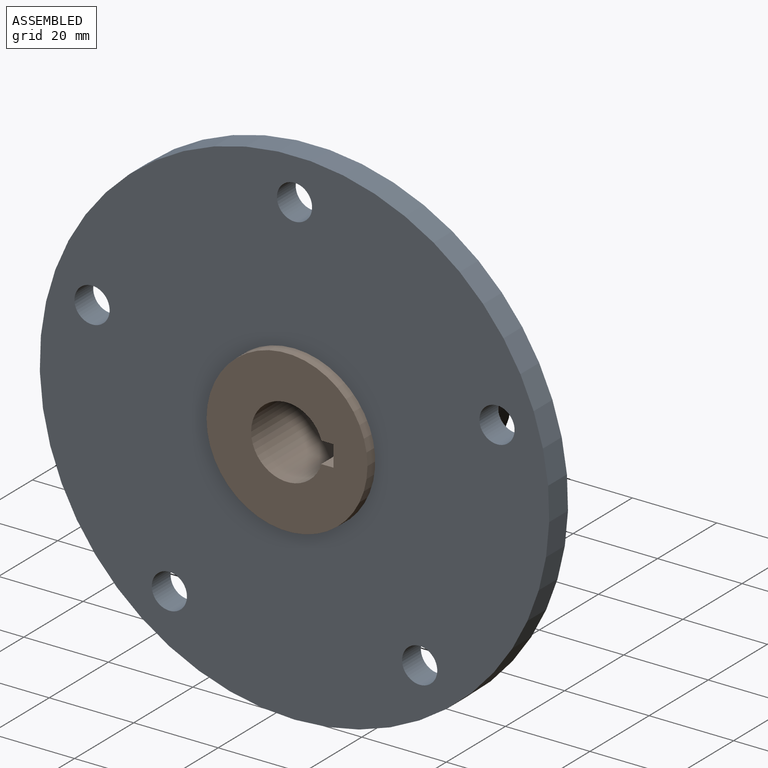
[diagram: assembled view]
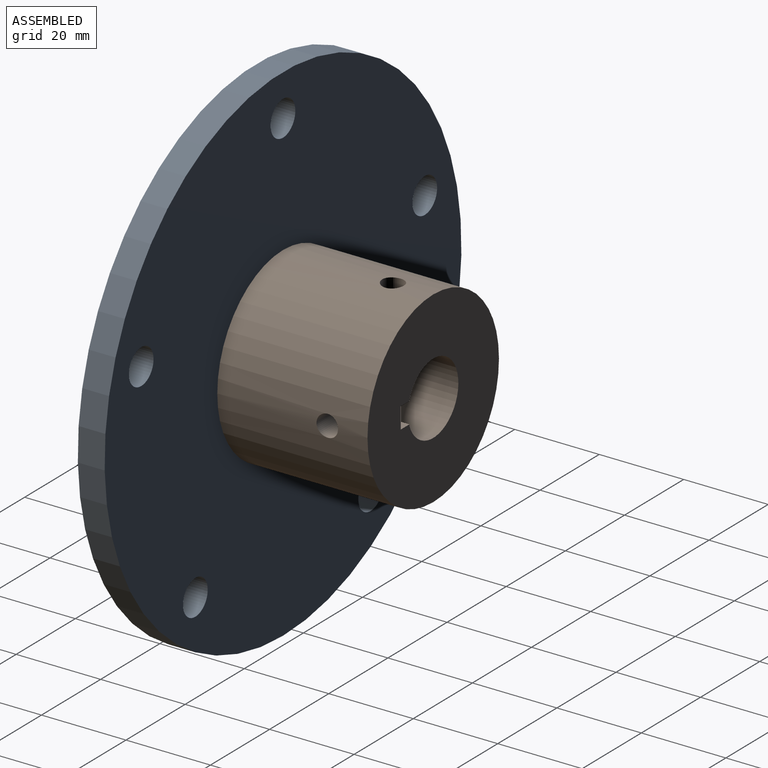
[diagram: assembled view, second angle]
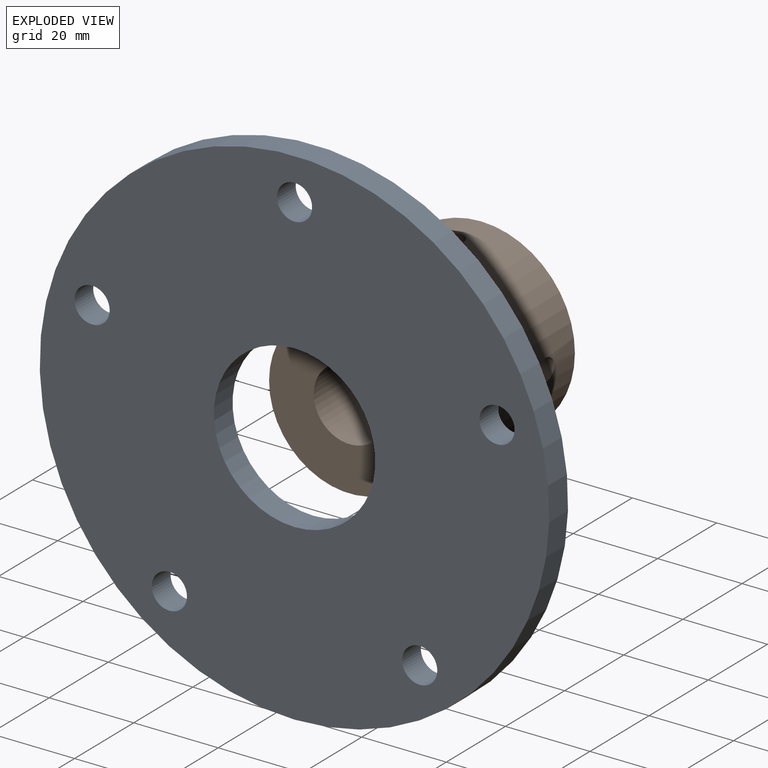
[diagram: exploded view]
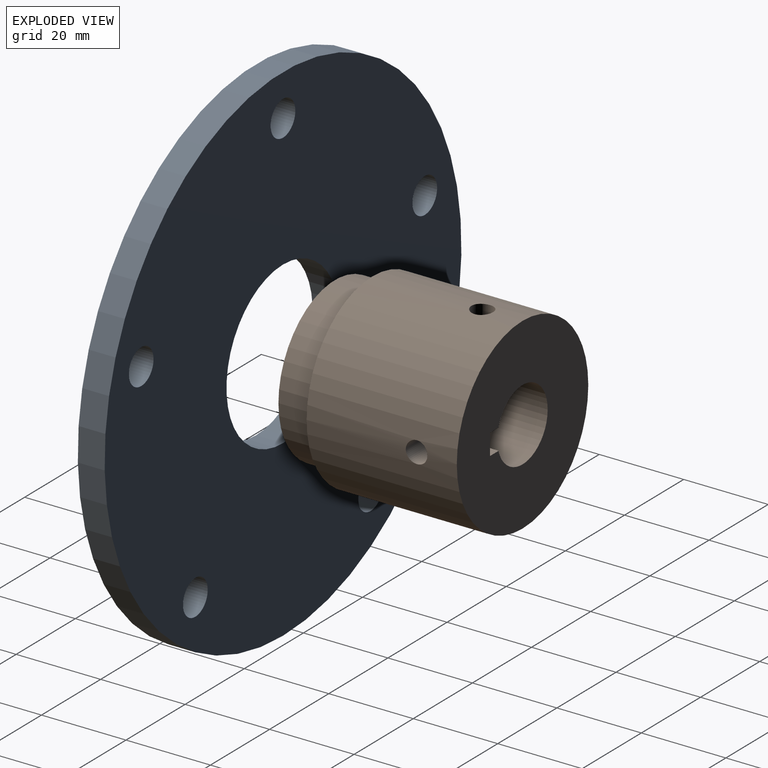
[diagram: exploded view, second angle]
ASSEMBLY  parts=2 mates=2
PART A: 9 faces, bbox 120.7x6.4x120.7 mm
  f0: cylinder r=19.11mm len=38.23mm, axis (0,1,0), area 762.6mm2, adj f2,f3
  f1: cylinder r=60.32mm len=120.65mm, axis (0,1,0), area 2406.9mm2, adj f2,f3
  f2: plane 120.65x120.65mm, normal (0,-1,0), area 10012.3mm2, adj f0,f1,f4,f5,f6,f7,f8
  f3: plane 120.65x120.65mm, normal (0,1,0), area 10012.3mm2, adj f0,f1,f4,f5,f6,f7,f8
  f4: cylinder r=4.17mm len=8.33mm, axis (0,-1,0), area 166.2mm2, adj f2,f3
  f5: cylinder r=4.17mm len=8.33mm, axis (0,-1,0), area 166.2mm2, adj f2,f3
  f6: cylinder r=4.17mm len=8.33mm, axis (0,-1,0), area 166.2mm2, adj f2,f3
  f7: cylinder r=4.17mm len=8.33mm, axis (0,-1,0), area 166.2mm2, adj f2,f3
  f8: cylinder r=4.17mm len=8.33mm, axis (0,-1,0), area 166.2mm2, adj f2,f3
PART B: 14 faces, bbox 44.5x44.5x44.5 mm
  f0: cylinder r=22.23mm len=44.45mm, axis (-1,0,0), area 4924.8mm2, adj f8,f10,f11,f13
  f1: plane 38.1x38.1mm, normal (1,0,0), area 900mm2, adj f2,f3,f5,f7,f12
  f2: cylinder r=8.5mm len=44.45mm, axis (-1,0,0), area 2127.6mm2, adj f1,f4,f5,f6,f7,f8,f10,f11
  f3: plane 34.41x5mm, normal (0,0,-1), area 164.4mm2, adj f1,f5,f7,f11
  f4: plane 9.01x2.88mm, normal (0,1,0), area 25.9mm2, adj f2,f8,f9,f11
  f5: plane 34.41x2.88mm, normal (0,1,0), area 99mm2, adj f1,f2,f3,f11
  f6: plane 9.01x2.88mm, normal (0,-1,0), area 25.9mm2, adj f2,f8,f9,f11
  f7: plane 34.41x2.88mm, normal (0,-1,0), area 99mm2, adj f1,f2,f3,f11
  f8: plane 44.45x44.45mm, normal (-1,0,0), area 1311.7mm2, adj f0,f2,f4,f6,f9
  f9: plane 9.01x5mm, normal (0,0,-1), area 37.4mm2, adj f4,f6,f8,f11
  f10: cylinder r=2.55mm len=14.12mm, axis (0,1,0), area 222.1mm2, adj f0,f2
  f11: cylinder r=2.55mm len=14.1mm, axis (0,0,-1), area 184.8mm2, adj f0,f2,f3,f4,f5,f6,f7,f9
  f12: cylinder r=19.05mm len=38.1mm, axis (1,0,0), area 1064.1mm2, adj f1,f13
  f13: plane 44.45x44.45mm, normal (1,0,0), area 411.7mm2, adj f0,f12
PLACE A t=(-32.02,0.77,21.69)mm
PLACE B rot(axis=(-0.58,0.58,-0.58),120deg) t=(-32.02,36.33,21.69)mm
MATE planar B.f0 <-> A.f1  axis (0,-1,0) through (-32.02,0.77,21.69)mm
MATE cylindrical B.f12 <-> A.f0  axis (0,-1,0) through (-32.02,0.77,21.69)mm
